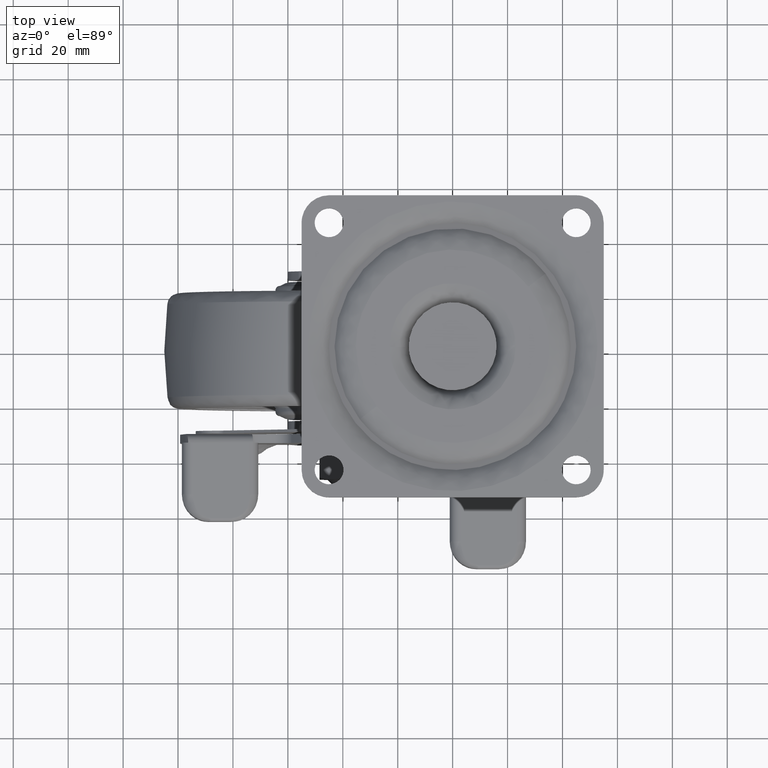
[diagram: clean part render]
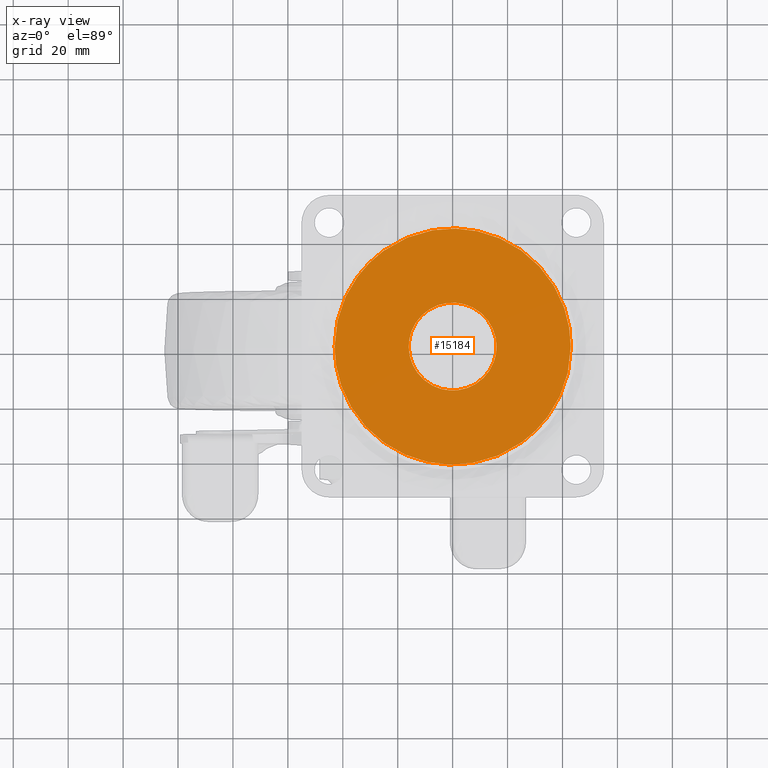
[diagram: x-ray — body ghosted, one internal face saturated and labeled with its STEP entity id]
A machine part, top view, then the same camera in x-ray: the body is ghosted and one INTERNAL B-rep face — a face not visible from any outside direction — is saturated and labeled: STEP entity #15184.
In plain terms, the highlighted face is a freeform B-spline surface patch.
Its self-contained STEP definition (entity closure, byte-faithful):
#14935=CARTESIAN_POINT('',(-25.274765534343601,34.787730325616288,-7.699999999999999));
#14936=VERTEX_POINT('',#14935);
#14950=CARTESIAN_POINT('',(-42.999999465296249,1.421085E-014,-7.700000000000000));
#14951=VERTEX_POINT('',#14950);
#14952=CARTESIAN_POINT('',(-42.999999465296249,1.421085E-014,-7.700000000000000));
#14953=CARTESIAN_POINT('',(-42.999999465324841,21.909594055853837,-7.700000000000001));
#14954=CARTESIAN_POINT('',(-25.274765534343608,34.787730325616288,-7.699999999999999));
#14962=(BOUNDED_CURVE()B_SPLINE_CURVE(2,(#14952,#14953,#14954),.UNSPECIFIED.,.F.,.U.)B_SPLINE_CURVE_WITH_KNOTS((3,3),(0.0,0.148750340999734),.UNSPECIFIED.)CURVE()GEOMETRIC_REPRESENTATION_ITEM()RATIONAL_B_SPLINE_CURVE((1.0,0.825728135299957,0.858840265006241))REPRESENTATION_ITEM(''));
#14963=EDGE_CURVE('',#14951,#14936,#14962,.T.);
#14965=CARTESIAN_POINT('',(25.274765534343612,-34.787730325616252,-7.699999999999999));
#14966=VERTEX_POINT('',#14965);
#14967=CARTESIAN_POINT('',(25.274765534343608,-34.787730325616252,-7.699999999999999));
#14968=CARTESIAN_POINT('',(13.971546764332368,-42.999999465368440,-7.700000000000000));
#14969=CARTESIAN_POINT('',(4.316071E-011,-42.999999465355650,-7.699999999999999));
#14970=CARTESIAN_POINT('',(-42.999999465281675,-42.999999465316293,-7.700000000000000));
#14971=CARTESIAN_POINT('',(-42.999999465296249,1.421085E-014,-7.700000000000000));
#14979=(BOUNDED_CURVE()B_SPLINE_CURVE(2,(#14967,#14968,#14969,#14970,#14971),.UNSPECIFIED.,.F.,.U.)B_SPLINE_CURVE_WITH_KNOTS((3,2,3),(0.648750340999734,0.750000000000000,1.0),.UNSPECIFIED.)CURVE()GEOMETRIC_REPRESENTATION_ITEM()RATIONAL_B_SPLINE_CURVE((0.858840265006241,0.881378645886590,1.0,0.707106781186548,1.0))REPRESENTATION_ITEM(''));
#14980=EDGE_CURVE('',#14966,#14951,#14979,.T.);
#15043=CARTESIAN_POINT('',(42.999999465296249,1.421085E-014,-7.700000000000000));
#15044=VERTEX_POINT('',#15043);
#15045=CARTESIAN_POINT('',(42.999999465296249,1.421085E-014,-7.700000000000000));
#15046=CARTESIAN_POINT('',(42.999999465324841,-21.909594055853784,-7.700000000000000));
#15047=CARTESIAN_POINT('',(25.274765534343608,-34.787730325616252,-7.699999999999999));
#15055=(BOUNDED_CURVE()B_SPLINE_CURVE(2,(#15045,#15046,#15047),.UNSPECIFIED.,.F.,.U.)B_SPLINE_CURVE_WITH_KNOTS((3,3),(0.500000000000000,0.648750340999734),.UNSPECIFIED.)CURVE()GEOMETRIC_REPRESENTATION_ITEM()RATIONAL_B_SPLINE_CURVE((1.0,0.825728135299958,0.858840265006241))REPRESENTATION_ITEM(''));
#15056=EDGE_CURVE('',#15044,#14966,#15055,.T.);
#15058=CARTESIAN_POINT('',(-25.274765534343608,34.787730325616288,-7.699999999999999));
#15059=CARTESIAN_POINT('',(-13.971546764332366,42.999999465368454,-7.699999999999999));
#15060=CARTESIAN_POINT('',(-4.316608E-011,42.999999465355678,-7.699999999999999));
#15061=CARTESIAN_POINT('',(42.999999465281675,42.999999465316321,-7.700000000000000));
#15062=CARTESIAN_POINT('',(42.999999465296249,1.421085E-014,-7.700000000000000));
#15070=(BOUNDED_CURVE()B_SPLINE_CURVE(2,(#15058,#15059,#15060,#15061,#15062),.UNSPECIFIED.,.F.,.U.)B_SPLINE_CURVE_WITH_KNOTS((3,2,3),(0.148750340999734,0.250000000000000,0.500000000000000),.UNSPECIFIED.)CURVE()GEOMETRIC_REPRESENTATION_ITEM()RATIONAL_B_SPLINE_CURVE((0.858840265006241,0.881378645886590,1.0,0.707106781186548,1.0))REPRESENTATION_ITEM(''));
#15071=EDGE_CURVE('',#14936,#15044,#15070,.T.);
#15107=CARTESIAN_POINT('',(-47.295699245194662,-47.272364109899371,-7.700000000000001));
#15108=CARTESIAN_POINT('',(47.295701551894382,-47.272364109899371,-7.700000000000001));
#15109=CARTESIAN_POINT('',(-47.295699245194662,47.272363341378806,-7.700000000000000));
#15110=CARTESIAN_POINT('',(47.295701551894382,47.272363341378806,-7.700000000000000));
#15111=B_SPLINE_SURFACE_WITH_KNOTS('',1,1,((#15107,#15109),(#15108,#15110)),.UNSPECIFIED.,.F.,.F.,.U.,(2,2),(2,2),(0.0,94.591400797089051),(0.0,94.544727451278192),.UNSPECIFIED.);
#15112=ORIENTED_EDGE('',*,*,#14963,.T.);
#15113=ORIENTED_EDGE('',*,*,#15071,.T.);
#15114=ORIENTED_EDGE('',*,*,#15056,.T.);
#15115=ORIENTED_EDGE('',*,*,#14980,.T.);
#15116=EDGE_LOOP('',(#15112,#15113,#15114,#15115));
#15117=FACE_OUTER_BOUND('',#15116,.T.);
#15118=CARTESIAN_POINT('',(-16.0,0.0,-7.700000000000000));
#15119=VERTEX_POINT('',#15118);
#15120=CARTESIAN_POINT('',(-0.976750954454732,-15.970158345248491,-7.700000000000000));
#15121=VERTEX_POINT('',#15120);
#15122=CARTESIAN_POINT('',(-16.0,0.0,-7.700000000000000));
#15123=CARTESIAN_POINT('',(-15.999999999999373,-15.051321316406677,-7.700000000000001));
#15124=CARTESIAN_POINT('',(-0.976750954454732,-15.970158345248487,-7.700000000000001));
#15132=(BOUNDED_CURVE()B_SPLINE_CURVE(2,(#15122,#15123,#15124),.UNSPECIFIED.,.F.,.U.)B_SPLINE_CURVE_WITH_KNOTS((3,3),(0.500000000000000,0.739333239676637),.UNSPECIFIED.)CURVE()GEOMETRIC_REPRESENTATION_ITEM()RATIONAL_B_SPLINE_CURVE((1.0,0.719603668248233,0.976072636269230))REPRESENTATION_ITEM(''));
#15133=EDGE_CURVE('',#15119,#15121,#15132,.T.);
#15134=ORIENTED_EDGE('',*,*,#15133,.T.);
#15135=CARTESIAN_POINT('',(16.0,0.0,-7.700000000000000));
#15136=VERTEX_POINT('',#15135);
#15137=CARTESIAN_POINT('',(-0.976750954454732,-15.970158345248487,-7.700000000000001));
#15138=CARTESIAN_POINT('',(-0.488831337726820,-15.999999999979647,-7.700000000000000));
#15139=CARTESIAN_POINT('',(1.222315E-012,-15.999999999979970,-7.700000000000000));
#15140=CARTESIAN_POINT('',(16.000000000000593,-15.999999999990283,-7.700000000000000));
#15141=CARTESIAN_POINT('',(16.0,0.0,-7.700000000000000));
#15149=(BOUNDED_CURVE()B_SPLINE_CURVE(2,(#15137,#15138,#15139,#15140,#15141),.UNSPECIFIED.,.F.,.U.)B_SPLINE_CURVE_WITH_KNOTS((3,2,3),(0.739333239676637,0.750000000000000,1.0),.UNSPECIFIED.)CURVE()GEOMETRIC_REPRESENTATION_ITEM()RATIONAL_B_SPLINE_CURVE((0.976072636269230,0.987503112938314,1.0,0.707106781186548,1.0))REPRESENTATION_ITEM(''));
#15150=EDGE_CURVE('',#15121,#15136,#15149,.T.);
#15151=ORIENTED_EDGE('',*,*,#15150,.T.);
#15152=CARTESIAN_POINT('',(0.976750954454733,15.970158345248491,-7.699999999999999));
#15153=VERTEX_POINT('',#15152);
#15154=CARTESIAN_POINT('',(16.0,0.0,-7.700000000000000));
#15155=CARTESIAN_POINT('',(15.999999999999371,15.051321316406673,-7.700000000000000));
#15156=CARTESIAN_POINT('',(0.976750954454733,15.970158345248491,-7.699999999999999));
#15164=(BOUNDED_CURVE()B_SPLINE_CURVE(2,(#15154,#15155,#15156),.UNSPECIFIED.,.F.,.U.)B_SPLINE_CURVE_WITH_KNOTS((3,3),(0.0,0.239333239676637),.UNSPECIFIED.)CURVE()GEOMETRIC_REPRESENTATION_ITEM()RATIONAL_B_SPLINE_CURVE((1.0,0.719603668248233,0.976072636269230))REPRESENTATION_ITEM(''));
#15165=EDGE_CURVE('',#15136,#15153,#15164,.T.);
#15166=ORIENTED_EDGE('',*,*,#15165,.T.);
#15167=CARTESIAN_POINT('',(0.976750954454733,15.970158345248491,-7.699999999999999));
#15168=CARTESIAN_POINT('',(0.488831337726819,15.999999999979648,-7.699999999999998));
#15169=CARTESIAN_POINT('',(-1.226409E-012,15.999999999979959,-7.699999999999998));
#15170=CARTESIAN_POINT('',(-16.000000000000593,15.999999999990283,-7.699999999999999));
#15171=CARTESIAN_POINT('',(-16.0,0.0,-7.700000000000000));
#15179=(BOUNDED_CURVE()B_SPLINE_CURVE(2,(#15167,#15168,#15169,#15170,#15171),.UNSPECIFIED.,.F.,.U.)B_SPLINE_CURVE_WITH_KNOTS((3,2,3),(0.239333239676637,0.250000000000000,0.500000000000000),.UNSPECIFIED.)CURVE()GEOMETRIC_REPRESENTATION_ITEM()RATIONAL_B_SPLINE_CURVE((0.976072636269230,0.987503112938314,1.0,0.707106781186548,1.0))REPRESENTATION_ITEM(''));
#15180=EDGE_CURVE('',#15153,#15119,#15179,.T.);
#15181=ORIENTED_EDGE('',*,*,#15180,.T.);
#15182=EDGE_LOOP('',(#15134,#15151,#15166,#15181));
#15183=FACE_BOUND('',#15182,.T.);
#15184=ADVANCED_FACE('',(#15117,#15183),#15111,.F.);